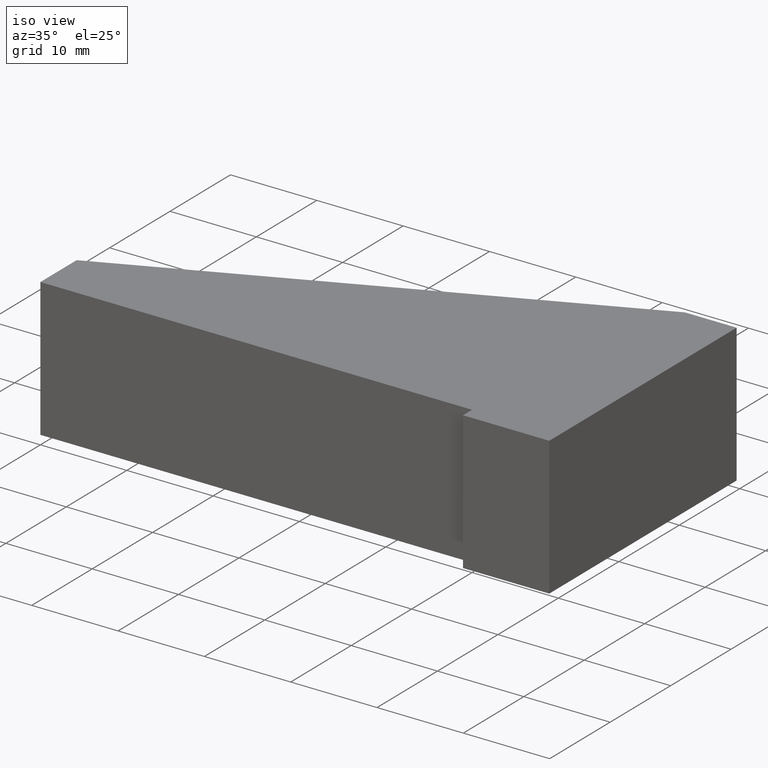
[diagram: clean part render]
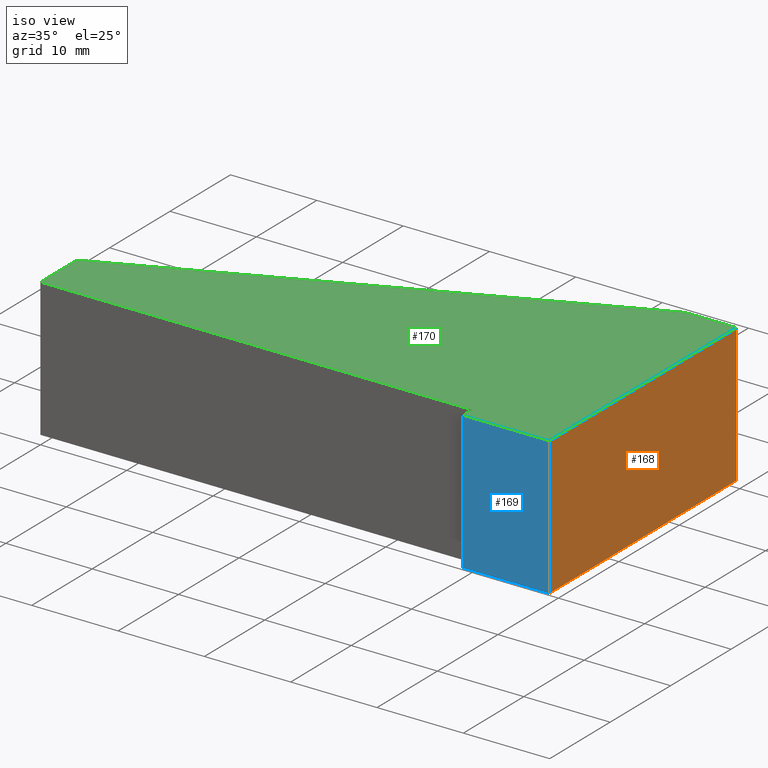
[diagram: same view with three faces highlighted in distinct colors, each labeled with its STEP entity id]
A machine part, iso view with three faces highlighted in distinct colors.
Their STEP definitions:

[orange] entity #168 — the highlighted planar face has unit normal (1, 0, 0).
#22=FACE_OUTER_BOUND('',#31,.T.);
#31=EDGE_LOOP('',(#138,#139,#140,#141));
#34=LINE('',#248,#55);
#51=LINE('',#281,#72);
#52=LINE('',#284,#73);
#53=LINE('',#285,#74);
#55=VECTOR('',#207,10.);
#72=VECTOR('',#234,10.);
#73=VECTOR('',#237,10.);
#74=VECTOR('',#238,10.);
#76=VERTEX_POINT('',#246);
#77=VERTEX_POINT('',#247);
#88=VERTEX_POINT('',#279);
#89=VERTEX_POINT('',#283);
#90=EDGE_CURVE('',#76,#77,#34,.T.);
#107=EDGE_CURVE('',#88,#77,#51,.T.);
#108=EDGE_CURVE('',#88,#89,#52,.T.);
#109=EDGE_CURVE('',#76,#89,#53,.T.);
#138=ORIENTED_EDGE('',*,*,#108,.T.);
#139=ORIENTED_EDGE('',*,*,#109,.F.);
#140=ORIENTED_EDGE('',*,*,#90,.T.);
#141=ORIENTED_EDGE('',*,*,#107,.F.);
#159=PLANE('',#200);
#168=ADVANCED_FACE('',(#22),#159,.T.);
#200=AXIS2_PLACEMENT_3D('',#282,#235,#236);
#207=DIRECTION('',(-5.58889629815771E-16,1.,0.));
#234=DIRECTION('',(0.,0.,-1.));
#235=DIRECTION('center_axis',(1.,5.58889629815771E-16,0.));
#236=DIRECTION('ref_axis',(0.,0.,-1.));
#237=DIRECTION('',(5.58889629815771E-16,-1.,0.));
#238=DIRECTION('',(0.,0.,1.));
#246=CARTESIAN_POINT('',(6.22334827803735E-15,-1.5,-8.));
#247=CARTESIAN_POINT('',(-1.11022302462516E-14,29.5,-8.));
#248=CARTESIAN_POINT('',(-1.11022302462516E-14,29.5,-8.));
#279=CARTESIAN_POINT('',(-1.11022302462516E-14,29.5,8.));
#281=CARTESIAN_POINT('',(-1.11022302462516E-14,29.5,0.));
#282=CARTESIAN_POINT('Origin',(-1.11022302462516E-14,29.5,0.));
#283=CARTESIAN_POINT('',(6.22334827803735E-15,-1.5,8.));
#284=CARTESIAN_POINT('',(-1.11022302462516E-14,29.5,8.));
#285=CARTESIAN_POINT('',(6.22334827803735E-15,-1.5,0.));

[blue] entity #169 — the highlighted planar face has unit normal (0, -1, 0).
#23=FACE_OUTER_BOUND('',#32,.T.);
#32=EDGE_LOOP('',(#142,#143,#144,#145));
#35=LINE('',#250,#56);
#43=LINE('',#265,#64);
#53=LINE('',#285,#74);
#54=LINE('',#287,#75);
#56=VECTOR('',#208,10.);
#64=VECTOR('',#218,10.);
#74=VECTOR('',#238,10.);
#75=VECTOR('',#241,10.);
#76=VERTEX_POINT('',#246);
#78=VERTEX_POINT('',#249);
#83=VERTEX_POINT('',#261);
#89=VERTEX_POINT('',#283);
#91=EDGE_CURVE('',#78,#76,#35,.T.);
#99=EDGE_CURVE('',#83,#78,#43,.T.);
#109=EDGE_CURVE('',#76,#89,#53,.T.);
#110=EDGE_CURVE('',#89,#83,#54,.T.);
#142=ORIENTED_EDGE('',*,*,#110,.T.);
#143=ORIENTED_EDGE('',*,*,#99,.T.);
#144=ORIENTED_EDGE('',*,*,#91,.T.);
#145=ORIENTED_EDGE('',*,*,#109,.T.);
#160=PLANE('',#201);
#169=ADVANCED_FACE('',(#23),#160,.T.);
#201=AXIS2_PLACEMENT_3D('',#286,#239,#240);
#208=DIRECTION('',(1.,1.11022302462516E-16,0.));
#218=DIRECTION('',(0.,0.,-1.));
#238=DIRECTION('',(0.,0.,1.));
#239=DIRECTION('center_axis',(1.11022302462516E-16,-1.,0.));
#240=DIRECTION('ref_axis',(0.,0.,-1.));
#241=DIRECTION('',(-1.,-1.11022302462516E-16,0.));
#246=CARTESIAN_POINT('',(6.22334827803735E-15,-1.5,-8.));
#249=CARTESIAN_POINT('',(-9.99999999999999,-1.5,-8.));
#250=CARTESIAN_POINT('',(6.22334827803735E-15,-1.5,-8.));
#261=CARTESIAN_POINT('',(-9.99999999999999,-1.5,8.));
#265=CARTESIAN_POINT('',(-9.99999999999999,-1.5,0.));
#283=CARTESIAN_POINT('',(6.22334827803735E-15,-1.5,8.));
#285=CARTESIAN_POINT('',(6.22334827803735E-15,-1.5,0.));
#286=CARTESIAN_POINT('Origin',(6.22334827803735E-15,-1.5,0.));
#287=CARTESIAN_POINT('',(6.22334827803735E-15,-1.5,8.));

[green] entity #170 — the highlighted planar face has unit normal (0, 0, 1).
#24=FACE_OUTER_BOUND('',#33,.T.);
#33=EDGE_LOOP('',(#146,#147,#148,#149,#150,#151,#152));
#41=LINE('',#263,#62);
#44=LINE('',#268,#65);
#46=LINE('',#272,#67);
#48=LINE('',#276,#69);
#50=LINE('',#280,#71);
#52=LINE('',#284,#73);
#54=LINE('',#287,#75);
#62=VECTOR('',#216,10.);
#65=VECTOR('',#221,10.);
#67=VECTOR('',#225,10.);
#69=VECTOR('',#229,10.);
#71=VECTOR('',#233,10.);
#73=VECTOR('',#237,10.);
#75=VECTOR('',#241,10.);
#83=VERTEX_POINT('',#261);
#84=VERTEX_POINT('',#262);
#85=VERTEX_POINT('',#267);
#86=VERTEX_POINT('',#271);
#87=VERTEX_POINT('',#275);
#88=VERTEX_POINT('',#279);
#89=VERTEX_POINT('',#283);
#97=EDGE_CURVE('',#83,#84,#41,.T.);
#100=EDGE_CURVE('',#84,#85,#44,.T.);
#102=EDGE_CURVE('',#85,#86,#46,.T.);
#104=EDGE_CURVE('',#86,#87,#48,.T.);
#106=EDGE_CURVE('',#87,#88,#50,.T.);
#108=EDGE_CURVE('',#88,#89,#52,.T.);
#110=EDGE_CURVE('',#89,#83,#54,.T.);
#146=ORIENTED_EDGE('',*,*,#97,.F.);
#147=ORIENTED_EDGE('',*,*,#110,.F.);
#148=ORIENTED_EDGE('',*,*,#108,.F.);
#149=ORIENTED_EDGE('',*,*,#106,.F.);
#150=ORIENTED_EDGE('',*,*,#104,.F.);
#151=ORIENTED_EDGE('',*,*,#102,.F.);
#152=ORIENTED_EDGE('',*,*,#100,.F.);
#161=PLANE('',#202);
#170=ADVANCED_FACE('',(#24),#161,.T.);
#202=AXIS2_PLACEMENT_3D('',#288,#242,#243);
#216=DIRECTION('',(1.48029736616686E-15,1.,0.));
#221=DIRECTION('',(-1.,-3.71924713249427E-16,0.));
#225=DIRECTION('',(0.,1.,0.));
#229=DIRECTION('',(0.916935025341359,0.399036538805962,0.));
#233=DIRECTION('',(1.,7.40148683083438E-16,0.));
#237=DIRECTION('',(5.58889629815771E-16,-1.,0.));
#241=DIRECTION('',(-1.,-1.11022302462516E-16,0.));
#242=DIRECTION('center_axis',(0.,0.,1.));
#243=DIRECTION('ref_axis',(1.,0.,0.));
#261=CARTESIAN_POINT('',(-9.99999999999999,-1.5,8.));
#262=CARTESIAN_POINT('',(-9.99999999999999,1.30451205393456E-14,8.));
#263=CARTESIAN_POINT('',(-9.99999999999999,-1.5,8.));
#267=CARTESIAN_POINT('',(-60.,-5.55111512312578E-15,8.));
#268=CARTESIAN_POINT('',(-9.99999999999999,1.30451205393456E-14,8.));
#271=CARTESIAN_POINT('',(-60.,6.,8.));
#272=CARTESIAN_POINT('',(-60.,-5.55111512312578E-15,8.));
#275=CARTESIAN_POINT('',(-6.00000000000001,29.5,8.));
#276=CARTESIAN_POINT('',(-60.,6.,8.));
#279=CARTESIAN_POINT('',(-1.11022302462516E-14,29.5,8.));
#280=CARTESIAN_POINT('',(-6.00000000000001,29.5,8.));
#283=CARTESIAN_POINT('',(6.22334827803735E-15,-1.5,8.));
#284=CARTESIAN_POINT('',(-1.11022302462516E-14,29.5,8.));
#287=CARTESIAN_POINT('',(6.22334827803735E-15,-1.5,8.));
#288=CARTESIAN_POINT('Origin',(-25.316018211639,10.1486416717289,8.));